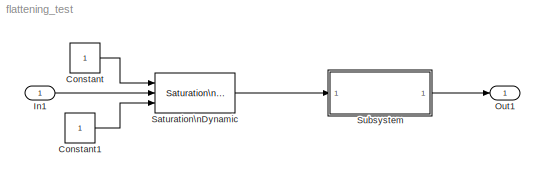
MODEL flattening_test
KIND model
BLOCK [Constant] Constant
  SID = 2
BLOCK [Constant] Constant1
  SID = 3
BLOCK [Inport] In1
  IconDisplay = Port number
  SID = 1
BLOCK [Outport] Out1
  IconDisplay = Port number
  SID = 8
BLOCK [Reference] Saturation\nDynamic  REF=simulink/Discontinuities/Saturation\nDynamic
  DoSatur = off
  LockScale = off
  OutDataType = sfix(16)
  OutDataTypeStr = Inherit: Same as second input
  OutMax = []
  OutMin = []
  OutScaling = 2^-10
  OutputDataTypeScalingMode = Same as second input
  Ports = [3, 1]
  RndMeth = Floor
  SID = 4
  SourceBlock = simulink/Discontinuities/Saturation\nDynamic
  SourceProductBaseCode = SL
  SourceProductName = Simulink
  SourceType = Saturation Dynamic
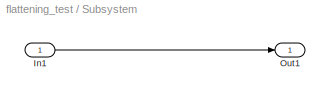
BLOCK [SubSystem] Subsystem
  Ports = [1, 1]
  RequestExecContextInheritance = off
  SID = 5
  Variant = off
BLOCK [Inport] Subsystem/In1
  IconDisplay = Port number
  SID = 6
BLOCK [Outport] Subsystem/Out1
  IconDisplay = Port number
  SID = 7
LINE Constant1:1 -> Saturation\nDynamic:3
LINE Constant:1 -> Saturation\nDynamic:1
LINE In1:1 -> Saturation\nDynamic:2
LINE Saturation\nDynamic:1 -> Subsystem:1
LINE Subsystem/In1:1 -> Subsystem/Out1:1
LINE Subsystem:1 -> Out1:1
